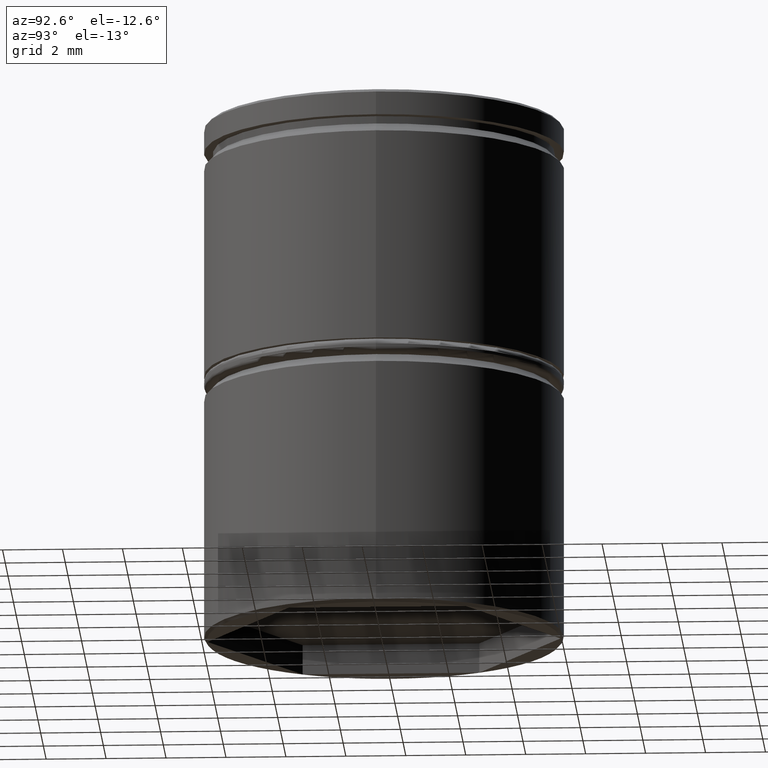
[diagram: clean part render]
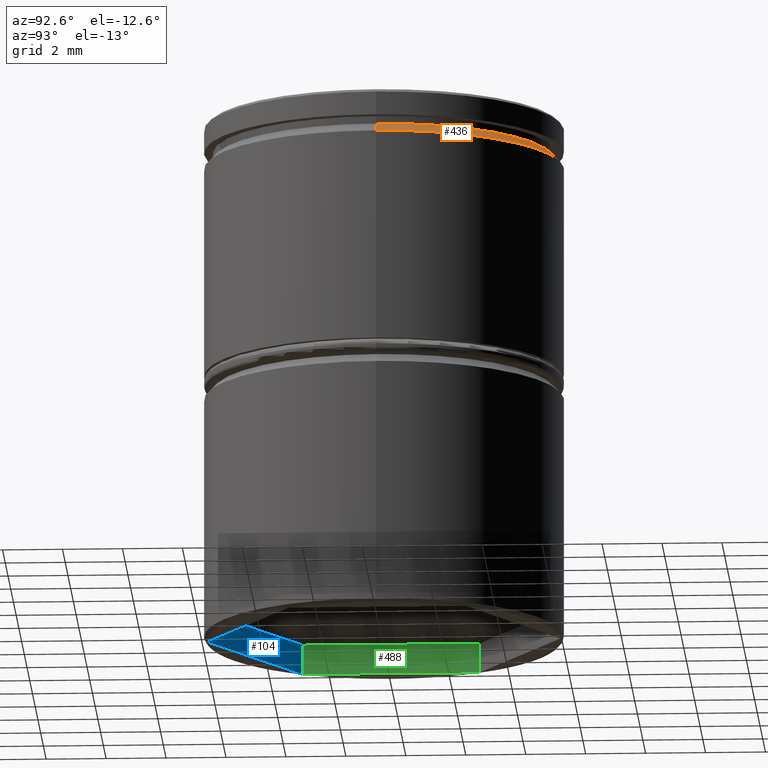
[diagram: same view with three faces highlighted in distinct colors, each labeled with its STEP entity id]
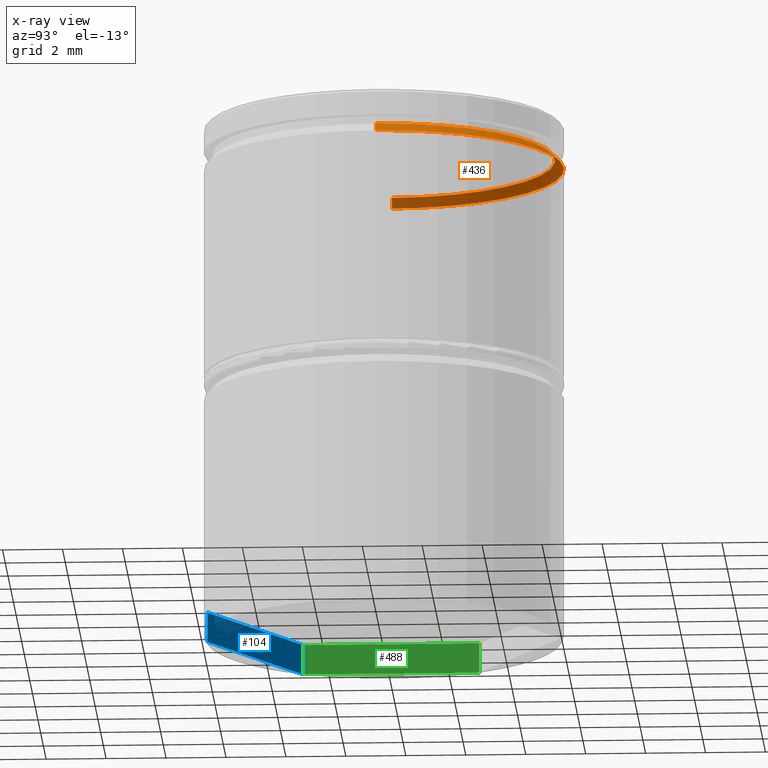
[diagram: x-ray of the same camera — body ghosted, the three highlighted faces saturated]
A machine part, auxiliary view with three faces highlighted in distinct colors.
The next image is the same camera in x-ray (body ghosted, the three faces saturated) — at least one of them is partly hidden behind the body in this view.
Their STEP definitions:

[orange] entity #436 — the highlighted conical surface has half-angle 45 deg.
#30 = CARTESIAN_POINT ( 'NONE',  ( 5.700000000000004619, 6.980486755139919025E-16, -1.125000000000000222 ) ) ;
#61 = AXIS2_PLACEMENT_3D ( 'NONE', #748, #280, #438 ) ;
#100 = VERTEX_POINT ( 'NONE', #140 ) ;
#113 = VECTOR ( 'NONE', #146, 1000.000000000000000 ) ;
#120 = CARTESIAN_POINT ( 'NONE',  ( -5.700000000000000178, 6.980486755139913108E-16, -1.125000000000000222 ) ) ;
#140 = CARTESIAN_POINT ( 'NONE',  ( 5.700000000000000178, 0.000000000000000000, -1.125000000000000222 ) ) ;
#144 = DIRECTION ( 'NONE',  ( 1.000000000000000000, 0.000000000000000000, 0.000000000000000000 ) ) ;
#146 = DIRECTION ( 'NONE',  ( -0.7071067811865434649, 0.000000000000000000, -0.7071067811865516806 ) ) ;
#158 = CARTESIAN_POINT ( 'NONE',  ( 6.000000000000000000, 0.000000000000000000, -1.424999999999999156 ) ) ;
#179 = EDGE_CURVE ( 'NONE', #410, #640, #439, .T. ) ;
#193 = AXIS2_PLACEMENT_3D ( 'NONE', #512, #822, #144 ) ;
#280 = DIRECTION ( 'NONE',  ( -0.000000000000000000, -0.000000000000000000, 1.000000000000000000 ) ) ;
#330 = DIRECTION ( 'NONE',  ( 0.000000000000000000, 0.000000000000000000, -1.000000000000000000 ) ) ;
#389 = LINE ( 'NONE', #932, #113 ) ;
#410 = VERTEX_POINT ( 'NONE', #743 ) ;
#436 = ADVANCED_FACE ( 'NONE', ( #506 ), #539, .T. ) ;
#438 = DIRECTION ( 'NONE',  ( 1.000000000000000000, 0.000000000000000000, 0.000000000000000000 ) ) ;
#439 = CIRCLE ( 'NONE', #193, 6.000000000000000000 ) ;
#449 = ORIENTED_EDGE ( 'NONE', *, *, #605, .F. ) ;
#454 = VERTEX_POINT ( 'NONE', #120 ) ;
#506 = FACE_OUTER_BOUND ( 'NONE', #769, .T. ) ;
#512 = CARTESIAN_POINT ( 'NONE',  ( 0.000000000000000000, 0.000000000000000000, -1.424999999999999156 ) ) ;
#529 = ORIENTED_EDGE ( 'NONE', *, *, #759, .F. ) ;
#539 = CONICAL_SURFACE ( 'NONE', #964, 5.700000000000004619, 0.7853981633974425058 ) ;
#584 = EDGE_CURVE ( 'NONE', #100, #640, #825, .T. ) ;
#605 = EDGE_CURVE ( 'NONE', #100, #454, #1001, .T. ) ;
#640 = VERTEX_POINT ( 'NONE', #158 ) ;
#646 = CARTESIAN_POINT ( 'NONE',  ( 0.000000000000000000, 0.000000000000000000, -1.125000000000000222 ) ) ;
#737 = DIRECTION ( 'NONE',  ( -1.000000000000000000, 0.000000000000000000, 0.000000000000000000 ) ) ;
#743 = CARTESIAN_POINT ( 'NONE',  ( -6.000000000000000000, 7.347880794884119736E-16, -1.424999999999999156 ) ) ;
#748 = CARTESIAN_POINT ( 'NONE',  ( 0.000000000000000000, 0.000000000000000000, -1.125000000000000222 ) ) ;
#753 = VECTOR ( 'NONE', #986, 1000.000000000000000 ) ;
#759 = EDGE_CURVE ( 'NONE', #454, #410, #389, .T. ) ;
#769 = EDGE_LOOP ( 'NONE', ( #449, #1035, #864, #529 ) ) ;
#822 = DIRECTION ( 'NONE',  ( 0.000000000000000000, 0.000000000000000000, -1.000000000000000000 ) ) ;
#825 = LINE ( 'NONE', #30, #753 ) ;
#864 = ORIENTED_EDGE ( 'NONE', *, *, #179, .F. ) ;
#932 = CARTESIAN_POINT ( 'NONE',  ( -5.700000000000004619, 0.000000000000000000, -1.125000000000000222 ) ) ;
#964 = AXIS2_PLACEMENT_3D ( 'NONE', #646, #330, #737 ) ;
#986 = DIRECTION ( 'NONE',  ( 0.7071067811865434649, 8.659560562354884787E-17, -0.7071067811865516806 ) ) ;
#1001 = CIRCLE ( 'NONE', #61, 5.700000000000000178 ) ;
#1035 = ORIENTED_EDGE ( 'NONE', *, *, #584, .T. ) ;

[blue] entity #104 — the highlighted planar face has unit normal (-0.5, -0.866, 0).
#49 = DIRECTION ( 'NONE',  ( -0.5000000000000003331, -0.8660254037844385966, 0.000000000000000000 ) ) ;
#52 = EDGE_CURVE ( 'NONE', #829, #806, #582, .T. ) ;
#67 = ORIENTED_EDGE ( 'NONE', *, *, #955, .T. ) ;
#104 = ADVANCED_FACE ( 'NONE', ( #903 ), #1004, .F. ) ;
#164 = VECTOR ( 'NONE', #356, 1000.000000000000114 ) ;
#190 = LINE ( 'NONE', #900, #967 ) ;
#197 = CARTESIAN_POINT ( 'NONE',  ( -8.646952822150503169E-16, -5.888972745734181835, -16.50000000000000000 ) ) ;
#255 = LINE ( 'NONE', #631, #830 ) ;
#276 = AXIS2_PLACEMENT_3D ( 'NONE', #451, #49, #991 ) ;
#290 = ORIENTED_EDGE ( 'NONE', *, *, #828, .T. ) ;
#336 = VERTEX_POINT ( 'NONE', #711 ) ;
#344 = DIRECTION ( 'NONE',  ( -0.000000000000000000, -0.000000000000000000, -1.000000000000000000 ) ) ;
#356 = DIRECTION ( 'NONE',  ( -0.8660254037844384856, 0.5000000000000002220, 0.000000000000000000 ) ) ;
#363 = DIRECTION ( 'NONE',  ( -0.000000000000000000, -0.000000000000000000, -1.000000000000000000 ) ) ;
#451 = CARTESIAN_POINT ( 'NONE',  ( -8.646952822150503169E-16, -5.888972745734181835, -16.50000000000000000 ) ) ;
#482 = DIRECTION ( 'NONE',  ( -0.8660254037844384856, 0.5000000000000002220, 0.000000000000000000 ) ) ;
#484 = VERTEX_POINT ( 'NONE', #573 ) ;
#514 = CARTESIAN_POINT ( 'NONE',  ( -5.100000000000000533, -2.944486372867089585, -16.50000000000000000 ) ) ;
#552 = ORIENTED_EDGE ( 'NONE', *, *, #52, .F. ) ;
#573 = CARTESIAN_POINT ( 'NONE',  ( -5.100000000000000533, -2.944486372867089585, -17.50000000000000000 ) ) ;
#574 = EDGE_CURVE ( 'NONE', #806, #484, #979, .T. ) ;
#582 = LINE ( 'NONE', #197, #164 ) ;
#631 = CARTESIAN_POINT ( 'NONE',  ( -8.646952822150503169E-16, -5.888972745734181835, -17.50000000000000000 ) ) ;
#654 = VECTOR ( 'NONE', #363, 1000.000000000000000 ) ;
#711 = CARTESIAN_POINT ( 'NONE',  ( -8.646952822150503169E-16, -5.888972745734181835, -17.50000000000000000 ) ) ;
#793 = CARTESIAN_POINT ( 'NONE',  ( -8.646952822150503169E-16, -5.888972745734181835, -16.50000000000000000 ) ) ;
#806 = VERTEX_POINT ( 'NONE', #885 ) ;
#824 = EDGE_LOOP ( 'NONE', ( #290, #876, #552, #67 ) ) ;
#828 = EDGE_CURVE ( 'NONE', #336, #484, #255, .T. ) ;
#829 = VERTEX_POINT ( 'NONE', #793 ) ;
#830 = VECTOR ( 'NONE', #482, 1000.000000000000114 ) ;
#876 = ORIENTED_EDGE ( 'NONE', *, *, #574, .F. ) ;
#885 = CARTESIAN_POINT ( 'NONE',  ( -5.100000000000000533, -2.944486372867089585, -16.50000000000000000 ) ) ;
#900 = CARTESIAN_POINT ( 'NONE',  ( -8.646952822150503169E-16, -5.888972745734181835, -16.50000000000000000 ) ) ;
#903 = FACE_OUTER_BOUND ( 'NONE', #824, .T. ) ;
#955 = EDGE_CURVE ( 'NONE', #829, #336, #190, .T. ) ;
#967 = VECTOR ( 'NONE', #344, 1000.000000000000000 ) ;
#979 = LINE ( 'NONE', #514, #654 ) ;
#991 = DIRECTION ( 'NONE',  ( 0.8660254037844384856, -0.5000000000000002220, 0.000000000000000000 ) ) ;
#1004 = PLANE ( 'NONE',  #276 ) ;

[green] entity #488 — the highlighted planar face has unit normal (-1, 0, 0).
#2 = CARTESIAN_POINT ( 'NONE',  ( -5.100000000000000533, 2.944486372867091806, -16.50000000000000000 ) ) ;
#62 = EDGE_LOOP ( 'NONE', ( #989, #559, #549, #802 ) ) ;
#68 = CARTESIAN_POINT ( 'NONE',  ( -5.100000000000000533, -2.944486372867089585, -16.50000000000000000 ) ) ;
#88 = DIRECTION ( 'NONE',  ( -0.000000000000000000, -0.000000000000000000, -1.000000000000000000 ) ) ;
#95 = VECTOR ( 'NONE', #627, 1000.000000000000000 ) ;
#218 = CARTESIAN_POINT ( 'NONE',  ( -5.100000000000000533, 2.944486372867091806, -16.50000000000000000 ) ) ;
#254 = LINE ( 'NONE', #426, #946 ) ;
#272 = EDGE_CURVE ( 'NONE', #806, #691, #550, .T. ) ;
#284 = CARTESIAN_POINT ( 'NONE',  ( -5.100000000000000533, 2.944486372867091806, -17.50000000000000000 ) ) ;
#285 = EDGE_CURVE ( 'NONE', #691, #563, #1032, .T. ) ;
#363 = DIRECTION ( 'NONE',  ( -0.000000000000000000, -0.000000000000000000, -1.000000000000000000 ) ) ;
#420 = CARTESIAN_POINT ( 'NONE',  ( -5.100000000000000533, -2.944486372867089585, -16.50000000000000000 ) ) ;
#426 = CARTESIAN_POINT ( 'NONE',  ( -5.100000000000000533, -2.944486372867089585, -17.50000000000000000 ) ) ;
#484 = VERTEX_POINT ( 'NONE', #573 ) ;
#486 = DIRECTION ( 'NONE',  ( 0.000000000000000000, 0.000000000000000000, 1.000000000000000000 ) ) ;
#487 = EDGE_CURVE ( 'NONE', #484, #563, #254, .T. ) ;
#488 = ADVANCED_FACE ( 'NONE', ( #658 ), #878, .F. ) ;
#514 = CARTESIAN_POINT ( 'NONE',  ( -5.100000000000000533, -2.944486372867089585, -16.50000000000000000 ) ) ;
#549 = ORIENTED_EDGE ( 'NONE', *, *, #272, .F. ) ;
#550 = LINE ( 'NONE', #68, #95 ) ;
#559 = ORIENTED_EDGE ( 'NONE', *, *, #285, .F. ) ;
#563 = VERTEX_POINT ( 'NONE', #284 ) ;
#568 = DIRECTION ( 'NONE',  ( -1.000000000000000000, 0.000000000000000000, 0.000000000000000000 ) ) ;
#573 = CARTESIAN_POINT ( 'NONE',  ( -5.100000000000000533, -2.944486372867089585, -17.50000000000000000 ) ) ;
#574 = EDGE_CURVE ( 'NONE', #806, #484, #979, .T. ) ;
#627 = DIRECTION ( 'NONE',  ( 0.000000000000000000, 1.000000000000000000, 0.000000000000000000 ) ) ;
#654 = VECTOR ( 'NONE', #363, 1000.000000000000000 ) ;
#658 = FACE_OUTER_BOUND ( 'NONE', #62, .T. ) ;
#689 = VECTOR ( 'NONE', #88, 1000.000000000000000 ) ;
#691 = VERTEX_POINT ( 'NONE', #218 ) ;
#802 = ORIENTED_EDGE ( 'NONE', *, *, #574, .T. ) ;
#806 = VERTEX_POINT ( 'NONE', #885 ) ;
#874 = DIRECTION ( 'NONE',  ( 0.000000000000000000, 1.000000000000000000, 0.000000000000000000 ) ) ;
#878 = PLANE ( 'NONE',  #983 ) ;
#885 = CARTESIAN_POINT ( 'NONE',  ( -5.100000000000000533, -2.944486372867089585, -16.50000000000000000 ) ) ;
#946 = VECTOR ( 'NONE', #874, 1000.000000000000000 ) ;
#979 = LINE ( 'NONE', #514, #654 ) ;
#983 = AXIS2_PLACEMENT_3D ( 'NONE', #420, #568, #486 ) ;
#989 = ORIENTED_EDGE ( 'NONE', *, *, #487, .T. ) ;
#1032 = LINE ( 'NONE', #2, #689 ) ;